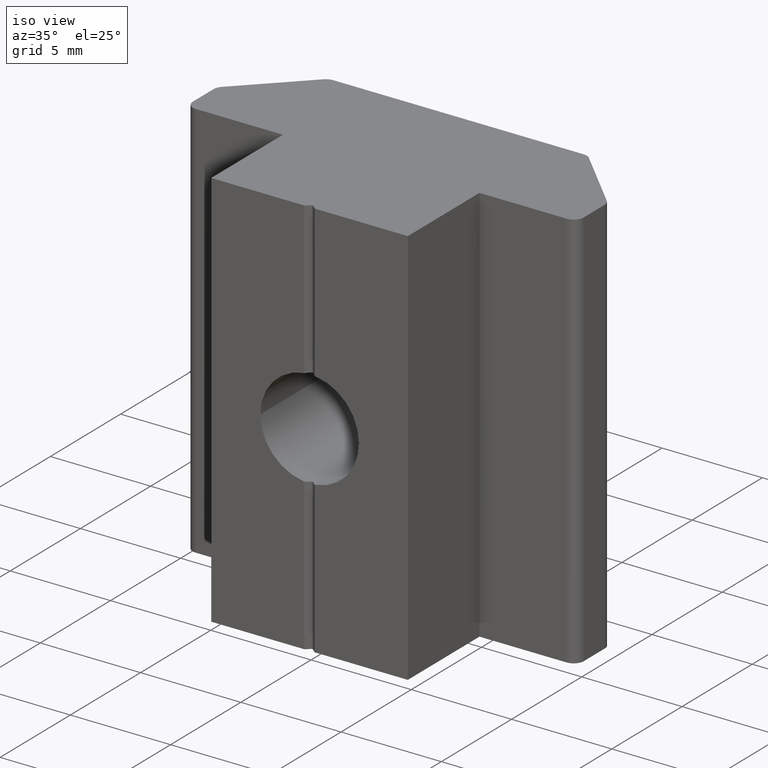
[diagram: clean part render]
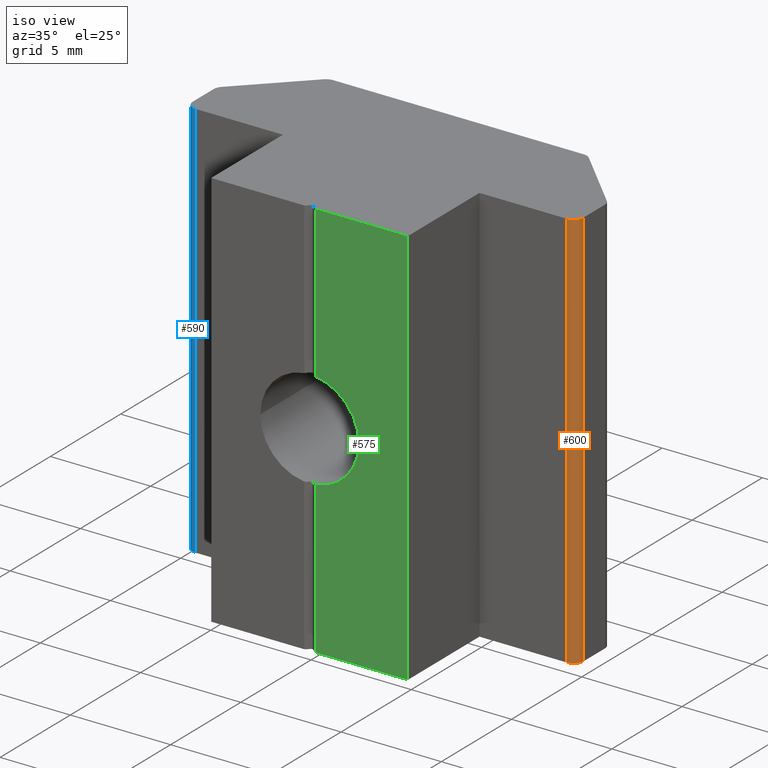
[diagram: same view with three faces highlighted in distinct colors, each labeled with its STEP entity id]
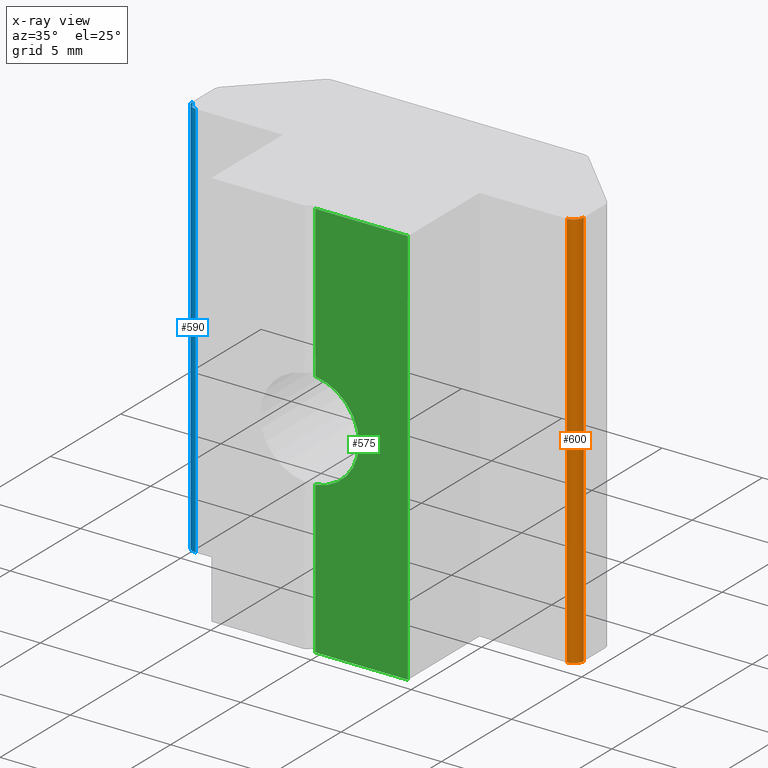
[diagram: x-ray of the same camera — body ghosted, the three highlighted faces saturated]
A machine part, iso view with three faces highlighted in distinct colors.
The next image is the same camera in x-ray (body ghosted, the three faces saturated) — at least one of them is partly hidden behind the body in this view.
Their STEP definitions:

[orange] entity #600 — the highlighted cylindrical surface (edge-blend (fillet) strip) has radius 0.5 mm, axis along (0, 0, 1).
#60=FACE_OUTER_BOUND('',#91,.T.);
#91=EDGE_LOOP('',(#530,#531,#532,#533));
#156=LINE('',#1059,#211);
#157=LINE('',#1063,#212);
#211=VECTOR('',#840,10.);
#212=VECTOR('',#845,10.);
#230=CIRCLE('',#657,0.499999999999999);
#236=CIRCLE('',#677,0.499999999999999);
#279=VERTEX_POINT('',#1001);
#280=VERTEX_POINT('',#1003);
#294=VERTEX_POINT('',#1057);
#295=VERTEX_POINT('',#1061);
#352=EDGE_CURVE('',#279,#280,#230,.T.);
#380=EDGE_CURVE('',#279,#294,#156,.T.);
#381=EDGE_CURVE('',#295,#294,#236,.T.);
#382=EDGE_CURVE('',#280,#295,#157,.T.);
#530=ORIENTED_EDGE('',*,*,#380,.T.);
#531=ORIENTED_EDGE('',*,*,#381,.F.);
#532=ORIENTED_EDGE('',*,*,#382,.F.);
#533=ORIENTED_EDGE('',*,*,#352,.F.);
#572=CYLINDRICAL_SURFACE('',#676,0.499999999999999);
#600=ADVANCED_FACE('',(#60),#572,.T.);
#657=AXIS2_PLACEMENT_3D('',#1004,#780,#781);
#676=AXIS2_PLACEMENT_3D('',#1060,#841,#842);
#677=AXIS2_PLACEMENT_3D('',#1062,#843,#844);
#780=DIRECTION('center_axis',(0.,0.,-1.));
#781=DIRECTION('ref_axis',(0.,-1.,0.));
#840=DIRECTION('',(0.,0.,1.));
#841=DIRECTION('center_axis',(0.,0.,1.));
#842=DIRECTION('ref_axis',(0.,-1.,0.));
#843=DIRECTION('center_axis',(0.,0.,1.));
#844=DIRECTION('ref_axis',(0.,-1.,0.));
#845=DIRECTION('',(0.,0.,1.));
#1001=CARTESIAN_POINT('',(9.75,0.5,-10.));
#1003=CARTESIAN_POINT('',(9.25,0.,-10.));
#1004=CARTESIAN_POINT('Origin',(9.25,0.5,-10.));
#1057=CARTESIAN_POINT('',(9.75,0.5,10.));
#1059=CARTESIAN_POINT('',(9.75,0.5,0.));
#1060=CARTESIAN_POINT('Origin',(9.25,0.5,0.));
#1061=CARTESIAN_POINT('',(9.25,0.,10.));
#1062=CARTESIAN_POINT('Origin',(9.25,0.5,10.));
#1063=CARTESIAN_POINT('',(9.25,0.,0.));

[blue] entity #590 — the highlighted cylindrical surface (edge-blend (fillet) strip) has radius 0.5 mm, axis along (0, 0, 1).
#50=FACE_OUTER_BOUND('',#80,.T.);
#80=EDGE_LOOP('',(#488,#489,#490,#491));
#141=LINE('',#1019,#196);
#142=LINE('',#1023,#197);
#196=VECTOR('',#795,10.);
#197=VECTOR('',#800,10.);
#225=CIRCLE('',#652,0.499999999999999);
#231=CIRCLE('',#662,0.499999999999999);
#269=VERTEX_POINT('',#981);
#270=VERTEX_POINT('',#983);
#284=VERTEX_POINT('',#1017);
#285=VERTEX_POINT('',#1021);
#342=EDGE_CURVE('',#269,#270,#225,.T.);
#360=EDGE_CURVE('',#269,#284,#141,.T.);
#361=EDGE_CURVE('',#285,#284,#231,.T.);
#362=EDGE_CURVE('',#270,#285,#142,.T.);
#488=ORIENTED_EDGE('',*,*,#360,.T.);
#489=ORIENTED_EDGE('',*,*,#361,.F.);
#490=ORIENTED_EDGE('',*,*,#362,.F.);
#491=ORIENTED_EDGE('',*,*,#342,.F.);
#567=CYLINDRICAL_SURFACE('',#661,0.499999999999999);
#590=ADVANCED_FACE('',(#50),#567,.T.);
#652=AXIS2_PLACEMENT_3D('',#984,#765,#766);
#661=AXIS2_PLACEMENT_3D('',#1020,#796,#797);
#662=AXIS2_PLACEMENT_3D('',#1022,#798,#799);
#765=DIRECTION('center_axis',(0.,0.,-1.));
#766=DIRECTION('ref_axis',(-1.,0.,0.));
#795=DIRECTION('',(0.,0.,1.));
#796=DIRECTION('center_axis',(0.,0.,1.));
#797=DIRECTION('ref_axis',(-1.,0.,0.));
#798=DIRECTION('center_axis',(0.,0.,1.));
#799=DIRECTION('ref_axis',(-1.,0.,0.));
#800=DIRECTION('',(0.,0.,1.));
#981=CARTESIAN_POINT('',(-9.25,0.,-10.));
#983=CARTESIAN_POINT('',(-9.75,0.5,-10.));
#984=CARTESIAN_POINT('Origin',(-9.25,0.5,-10.));
#1017=CARTESIAN_POINT('',(-9.25,0.,10.));
#1019=CARTESIAN_POINT('',(-9.25,0.,0.));
#1020=CARTESIAN_POINT('Origin',(-9.25,0.5,0.));
#1021=CARTESIAN_POINT('',(-9.75,0.5,10.));
#1022=CARTESIAN_POINT('Origin',(-9.25,0.5,10.));
#1023=CARTESIAN_POINT('',(-9.75,0.5,0.));

[green] entity #575 — the highlighted planar face has unit normal (0, -1, 0).
#16=PLANE('',#635);
#35=FACE_OUTER_BOUND('',#65,.T.);
#65=EDGE_LOOP('',(#405,#406,#407,#408,#409,#410));
#107=LINE('',#930,#162);
#108=LINE('',#932,#163);
#109=LINE('',#934,#164);
#110=LINE('',#936,#165);
#111=LINE('',#937,#166);
#162=VECTOR('',#711,10.);
#163=VECTOR('',#712,10.);
#164=VECTOR('',#713,10.);
#165=VECTOR('',#714,10.);
#166=VECTOR('',#715,10.);
#217=CIRCLE('',#629,2.4585);
#245=VERTEX_POINT('',#883);
#246=VERTEX_POINT('',#890);
#254=VERTEX_POINT('',#929);
#255=VERTEX_POINT('',#931);
#256=VERTEX_POINT('',#933);
#257=VERTEX_POINT('',#935);
#305=EDGE_CURVE('',#246,#245,#217,.T.);
#315=EDGE_CURVE('',#245,#254,#107,.T.);
#316=EDGE_CURVE('',#255,#254,#108,.T.);
#317=EDGE_CURVE('',#255,#256,#109,.T.);
#318=EDGE_CURVE('',#257,#256,#110,.T.);
#319=EDGE_CURVE('',#257,#246,#111,.T.);
#405=ORIENTED_EDGE('',*,*,#305,.T.);
#406=ORIENTED_EDGE('',*,*,#315,.T.);
#407=ORIENTED_EDGE('',*,*,#316,.F.);
#408=ORIENTED_EDGE('',*,*,#317,.T.);
#409=ORIENTED_EDGE('',*,*,#318,.F.);
#410=ORIENTED_EDGE('',*,*,#319,.T.);
#575=ADVANCED_FACE('',(#35),#16,.T.);
#629=AXIS2_PLACEMENT_3D('',#891,#695,#696);
#635=AXIS2_PLACEMENT_3D('',#928,#709,#710);
#695=DIRECTION('center_axis',(0.,1.,0.));
#696=DIRECTION('ref_axis',(1.,0.,0.));
#709=DIRECTION('center_axis',(0.,-1.,0.));
#710=DIRECTION('ref_axis',(1.,0.,0.));
#711=DIRECTION('',(0.,0.,-1.));
#712=DIRECTION('',(-1.,0.,0.));
#713=DIRECTION('',(0.,0.,1.));
#714=DIRECTION('',(1.,0.,0.));
#715=DIRECTION('',(0.,0.,-1.));
#883=CARTESIAN_POINT('',(0.282842712474618,-5.1,-2.44217572054101));
#890=CARTESIAN_POINT('',(0.282842712474618,-5.1,2.44217572054101));
#891=CARTESIAN_POINT('Origin',(0.,-5.1,0.));
#928=CARTESIAN_POINT('Origin',(-4.9,-5.1,0.));
#929=CARTESIAN_POINT('',(0.282842712474618,-5.1,-10.));
#930=CARTESIAN_POINT('',(0.282842712474618,-5.1,0.));
#931=CARTESIAN_POINT('',(4.9,-5.1,-10.));
#932=CARTESIAN_POINT('',(-4.9,-5.1,-10.));
#933=CARTESIAN_POINT('',(4.9,-5.1,10.));
#934=CARTESIAN_POINT('',(4.9,-5.1,0.));
#935=CARTESIAN_POINT('',(0.282842712474618,-5.1,10.));
#936=CARTESIAN_POINT('',(-4.9,-5.1,10.));
#937=CARTESIAN_POINT('',(0.282842712474618,-5.1,0.));